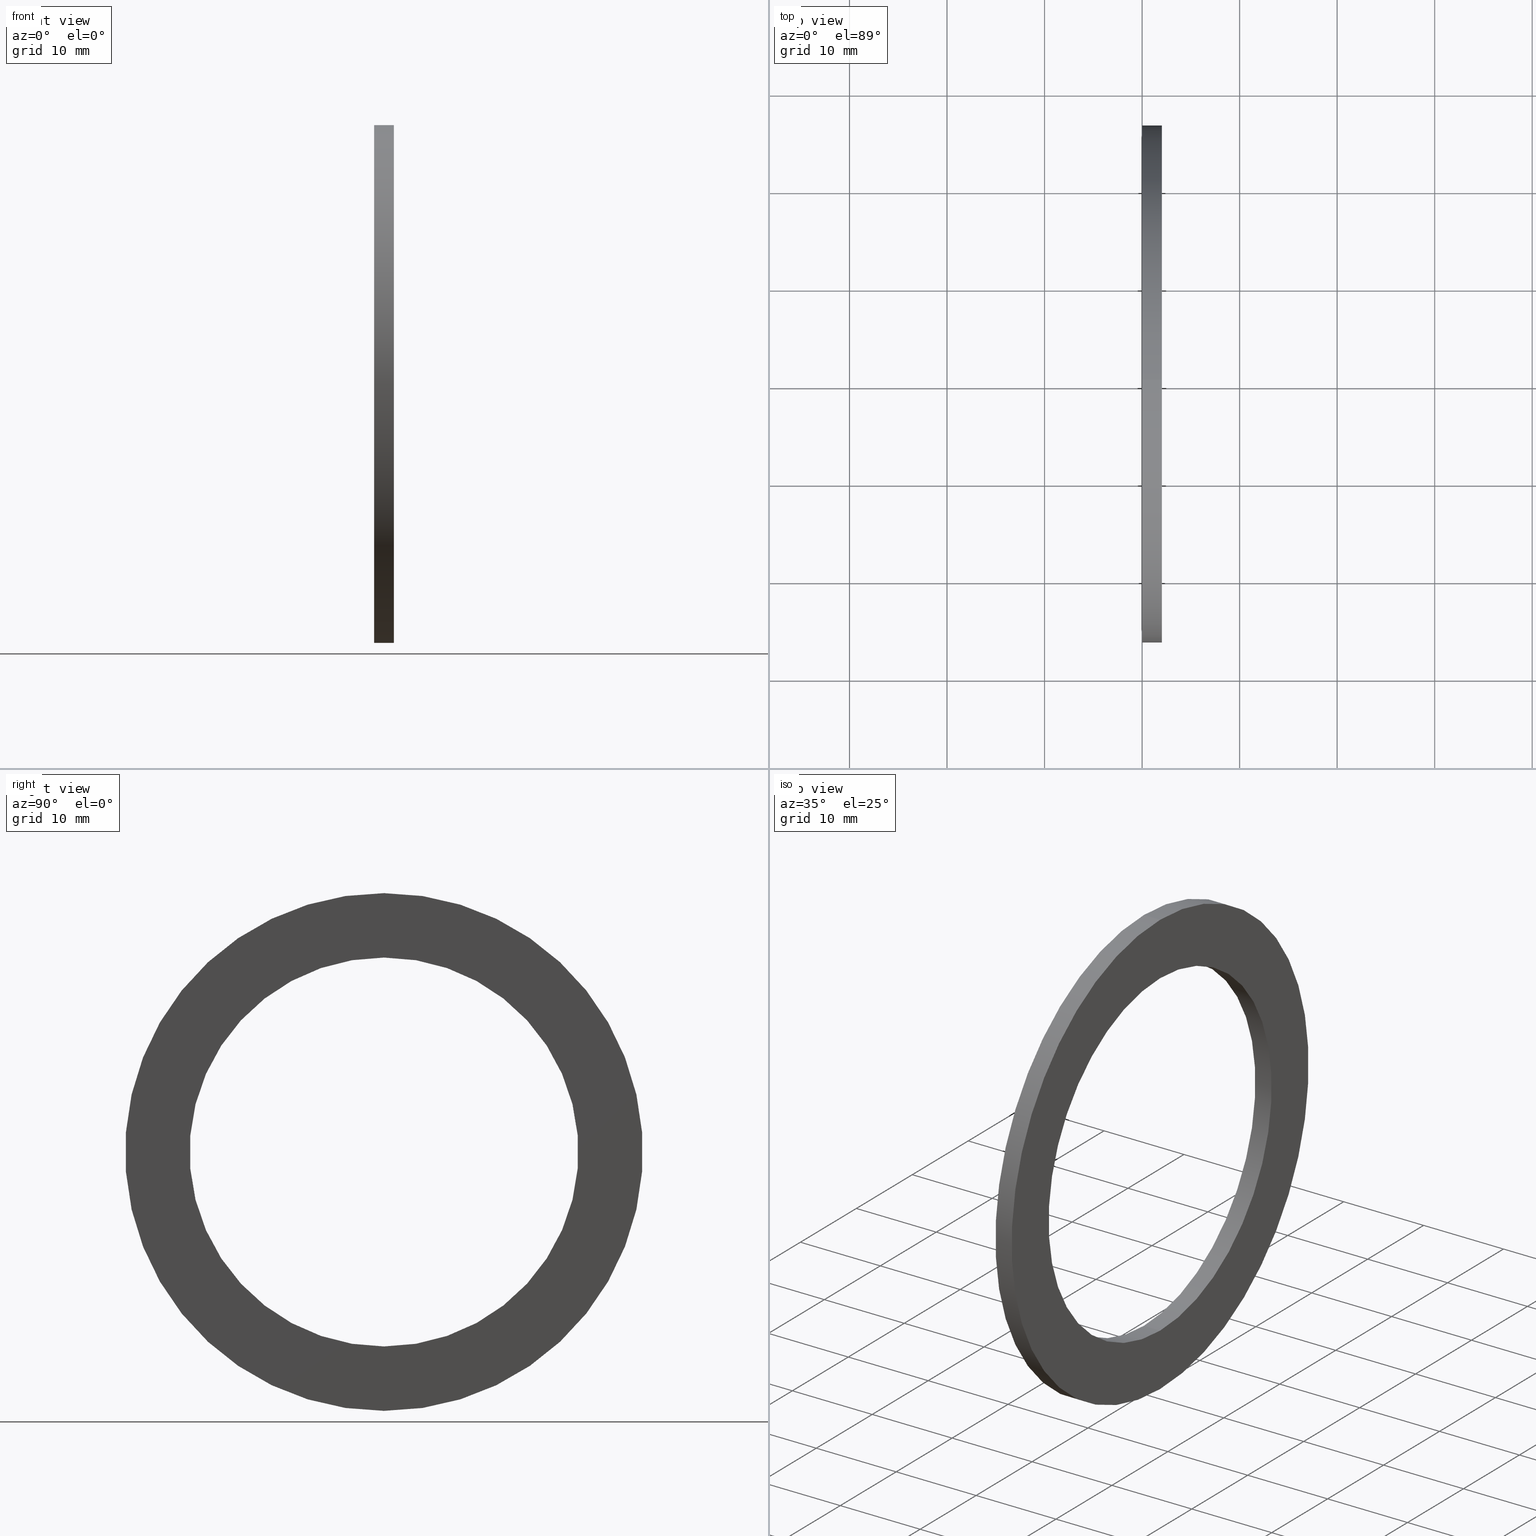
[diagram: canonical four-view strip — front | top / right | iso, engineering-drawing reading convention]
A machine part, canonical four-view strip (front | top / right | iso — engineering-drawing reading convention). The complete STEP part file that produces these views, byte-faithful:
ISO-10303-21;
HEADER;
FILE_DESCRIPTION (( 'STEP AP203' ),
    '1' );
FILE_NAME ('MS-40-NY.STEP',
    '2008-03-29T07:54:28',
    ( '' ),
    ( '' ),
    'SwSTEP 2.0',
    'SolidWorks 2007',
    '' );
FILE_SCHEMA (( 'CONFIG_CONTROL_DESIGN' ));
ENDSEC;

DATA;
#1 = CARTESIAN_POINT ( 'NONE',  ( 0.07999999999999996000, 0.0000000000000000000, 0.0000000000000000000 ) ) ;
#2 = DIRECTION ( 'NONE',  ( -1.000000000000000000, 0.0000000000000000000, 0.0000000000000000000 ) ) ;
#3 = DIRECTION ( 'NONE',  ( 0.0000000000000000000, 0.0000000000000000000, 1.000000000000000000 ) ) ;
#4 = CARTESIAN_POINT ( 'NONE',  ( -1.721125226614714300, 0.0000000000000000000, 0.0000000000000000000 ) ) ;
#5 = DIRECTION ( 'NONE',  ( 0.0000000000000000000, 0.0000000000000000000, -1.000000000000000000 ) ) ;
#6 = DIRECTION ( 'NONE',  ( 1.000000000000000000, 0.0000000000000000000, 0.0000000000000000000 ) ) ;
#7 = CARTESIAN_POINT ( 'NONE',  ( 0.08000000000000002900, -0.7850000000000001400, 0.0000000000000000000 ) ) ;
#8 = AXIS2_PLACEMENT_3D ( 'NONE', #7, #6, #5 ) ;
#9 = FACE_OUTER_BOUND ( 'NONE', #89, .T. ) ;
#10 = PLANE ( 'NONE',  #8 ) ;
#11 = FACE_OUTER_BOUND ( 'NONE', #83, .T. ) ;
#12 = DIRECTION ( 'NONE',  ( 0.0000000000000000000, 0.0000000000000000000, 1.000000000000000000 ) ) ;
#13 = DIRECTION ( 'NONE',  ( -1.000000000000000000, 0.0000000000000000000, 0.0000000000000000000 ) ) ;
#14 = CARTESIAN_POINT ( 'NONE',  ( 0.07999999999999996000, 0.0000000000000000000, 0.0000000000000000000 ) ) ;
#15 = AXIS2_PLACEMENT_3D ( 'NONE', #14, #13, #12 ) ;
#16 = CIRCLE ( 'NONE', #15, 0.7850000000000001400 ) ;
#17 = FACE_BOUND ( 'NONE', #84, .T. ) ;
#18 = CARTESIAN_POINT ( 'NONE',  ( 0.0000000000000000000, 0.0000000000000000000, 1.044999999999999900 ) ) ;
#19 = DIRECTION ( 'NONE',  ( 0.0000000000000000000, 0.0000000000000000000, 1.000000000000000000 ) ) ;
#20 = DIRECTION ( 'NONE',  ( -1.000000000000000000, 0.0000000000000000000, 0.0000000000000000000 ) ) ;
#21 = CARTESIAN_POINT ( 'NONE',  ( 3.490128108393776100E-017, -0.7850000000000001400, 0.0000000000000000000 ) ) ;
#22 = AXIS2_PLACEMENT_3D ( 'NONE', #21, #20, #19 ) ;
#23 = PLANE ( 'NONE',  #22 ) ;
#24 = ADVANCED_FACE ( 'NONE', ( #81 ), #80, .T. ) ;
#25 = EDGE_LOOP ( 'NONE', ( #143, #145, #73, #75 ) ) ;
#26 = EDGE_CURVE ( 'NONE', #119, #149, #41, .T. ) ;
#27 = FACE_BOUND ( 'NONE', #141, .T. ) ;
#28 = FACE_OUTER_BOUND ( 'NONE', #79, .T. ) ;
#29 = DIRECTION ( 'NONE',  ( -1.000000000000000000, 0.0000000000000000000, 0.0000000000000000000 ) ) ;
#30 = VECTOR ( 'NONE', #29, 39.37007874015748100 ) ;
#31 = CARTESIAN_POINT ( 'NONE',  ( -1.721125226614714300, 0.0000000000000000000, 1.044999999999999900 ) ) ;
#32 = DIRECTION ( 'NONE',  ( 0.0000000000000000000, 0.0000000000000000000, 1.000000000000000000 ) ) ;
#33 = DIRECTION ( 'NONE',  ( -1.000000000000000000, 0.0000000000000000000, 0.0000000000000000000 ) ) ;
#34 = CARTESIAN_POINT ( 'NONE',  ( 0.0000000000000000000, 0.0000000000000000000, 0.0000000000000000000 ) ) ;
#35 = AXIS2_PLACEMENT_3D ( 'NONE', #34, #33, #32 ) ;
#36 = CIRCLE ( 'NONE', #35, 1.044999999999999900 ) ;
#37 = LINE ( 'NONE', #31, #30 ) ;
#38 = DIRECTION ( 'NONE',  ( -1.000000000000000000, 0.0000000000000000000, 0.0000000000000000000 ) ) ;
#39 = VECTOR ( 'NONE', #38, 39.37007874015748100 ) ;
#40 = CARTESIAN_POINT ( 'NONE',  ( -1.721125226614714300, 0.0000000000000000000, 0.7850000000000001400 ) ) ;
#41 = LINE ( 'NONE', #40, #39 ) ;
#42 = DIRECTION ( 'NONE',  ( 0.0000000000000000000, 0.0000000000000000000, 1.000000000000000000 ) ) ;
#43 = DIRECTION ( 'NONE',  ( -1.000000000000000000, 0.0000000000000000000, 0.0000000000000000000 ) ) ;
#44 = CARTESIAN_POINT ( 'NONE',  ( -1.721125226614714300, 0.0000000000000000000, 0.0000000000000000000 ) ) ;
#45 = AXIS2_PLACEMENT_3D ( 'NONE', #44, #43, #42 ) ;
#46 = VECTOR ( 'NONE', #72, 39.37007874015748100 ) ;
#47 = CARTESIAN_POINT ( 'NONE',  ( -1.721125226614714300, 9.613477373306724800E-017, -0.7850000000000001400 ) ) ;
#48 = LINE ( 'NONE', #47, #46 ) ;
#49 = CARTESIAN_POINT ( 'NONE',  ( 0.07999999999999996000, 0.0000000000000000000, 0.7850000000000001400 ) ) ;
#50 = DIRECTION ( 'NONE',  ( 0.0000000000000000000, 0.0000000000000000000, 1.000000000000000000 ) ) ;
#51 = DIRECTION ( 'NONE',  ( -1.000000000000000000, 0.0000000000000000000, 0.0000000000000000000 ) ) ;
#52 = CARTESIAN_POINT ( 'NONE',  ( 0.07999999999999996000, 0.0000000000000000000, 0.0000000000000000000 ) ) ;
#53 = AXIS2_PLACEMENT_3D ( 'NONE', #52, #51, #50 ) ;
#54 = CIRCLE ( 'NONE', #53, 0.7850000000000001400 ) ;
#55 = DIRECTION ( 'NONE',  ( 0.0000000000000000000, 0.0000000000000000000, 1.000000000000000000 ) ) ;
#56 = DIRECTION ( 'NONE',  ( -1.000000000000000000, 0.0000000000000000000, 0.0000000000000000000 ) ) ;
#57 = CARTESIAN_POINT ( 'NONE',  ( -1.721125226614714300, 0.0000000000000000000, 0.0000000000000000000 ) ) ;
#58 = CYLINDRICAL_SURFACE ( 'NONE', #60, 0.7850000000000001400 ) ;
#59 = CARTESIAN_POINT ( 'NONE',  ( 0.07999999999999996000, 9.613477373306724800E-017, -0.7850000000000001400 ) ) ;
#60 = AXIS2_PLACEMENT_3D ( 'NONE', #57, #56, #55 ) ;
#61 = DIRECTION ( 'NONE',  ( 0.0000000000000000000, 0.0000000000000000000, 1.000000000000000000 ) ) ;
#62 = DIRECTION ( 'NONE',  ( -1.000000000000000000, 0.0000000000000000000, 0.0000000000000000000 ) ) ;
#63 = AXIS2_PLACEMENT_3D ( 'NONE', #4, #62, #61 ) ;
#64 = CYLINDRICAL_SURFACE ( 'NONE', #63, 0.7850000000000001400 ) ;
#65 = FACE_OUTER_BOUND ( 'NONE', #115, .T. ) ;
#66 = DIRECTION ( 'NONE',  ( 0.0000000000000000000, 0.0000000000000000000, 1.000000000000000000 ) ) ;
#67 = DIRECTION ( 'NONE',  ( -1.000000000000000000, 0.0000000000000000000, 0.0000000000000000000 ) ) ;
#68 = CARTESIAN_POINT ( 'NONE',  ( 0.0000000000000000000, 0.0000000000000000000, 0.0000000000000000000 ) ) ;
#69 = AXIS2_PLACEMENT_3D ( 'NONE', #68, #67, #66 ) ;
#70 = CIRCLE ( 'NONE', #69, 0.7850000000000001400 ) ;
#71 = CARTESIAN_POINT ( 'NONE',  ( 0.0000000000000000000, 9.613477373306724800E-017, -0.7850000000000001400 ) ) ;
#72 = DIRECTION ( 'NONE',  ( -1.000000000000000000, 0.0000000000000000000, 0.0000000000000000000 ) ) ;
#73 = ORIENTED_EDGE ( 'NONE', *, *, #74, .F. ) ;
#74 = EDGE_CURVE ( 'NONE', #78, #144, #36, .T. ) ;
#75 = ORIENTED_EDGE ( 'NONE', *, *, #76, .F. ) ;
#76 = EDGE_CURVE ( 'NONE', #147, #78, #37, .T. ) ;
#77 = ADVANCED_FACE ( 'NONE', ( #28, #27 ), #23, .T. ) ;
#78 = VERTEX_POINT ( 'NONE', #18 ) ;
#79 = EDGE_LOOP ( 'NONE', ( #136, #140 ) ) ;
#80 = CYLINDRICAL_SURFACE ( 'NONE', #45, 1.044999999999999900 ) ;
#81 = FACE_OUTER_BOUND ( 'NONE', #25, .T. ) ;
#82 = EDGE_CURVE ( 'NONE', #119, #117, #16, .T. ) ;
#83 = EDGE_LOOP ( 'NONE', ( #91, #88 ) ) ;
#84 = EDGE_LOOP ( 'NONE', ( #112, #90 ) ) ;
#85 = ORIENTED_EDGE ( 'NONE', *, *, #82, .F. ) ;
#86 = ORIENTED_EDGE ( 'NONE', *, *, #26, .T. ) ;
#87 = ORIENTED_EDGE ( 'NONE', *, *, #138, .T. ) ;
#88 = ORIENTED_EDGE ( 'NONE', *, *, #155, .F. ) ;
#89 = EDGE_LOOP ( 'NONE', ( #110, #85, #86, #87 ) ) ;
#90 = ORIENTED_EDGE ( 'NONE', *, *, #118, .T. ) ;
#91 = ORIENTED_EDGE ( 'NONE', *, *, #142, .F. ) ;
#92 = CARTESIAN_POINT ( 'NONE',  ( 0.0000000000000000000, 1.279755905108984100E-016, -1.044999999999999900 ) ) ;
#93 = DIRECTION ( 'NONE',  ( 0.0000000000000000000, 0.0000000000000000000, 1.000000000000000000 ) ) ;
#94 = DIRECTION ( 'NONE',  ( -1.000000000000000000, 0.0000000000000000000, 0.0000000000000000000 ) ) ;
#95 = CARTESIAN_POINT ( 'NONE',  ( 0.07999999999999996000, 0.0000000000000000000, 0.0000000000000000000 ) ) ;
#96 = AXIS2_PLACEMENT_3D ( 'NONE', #95, #94, #93 ) ;
#97 = CIRCLE ( 'NONE', #96, 1.044999999999999900 ) ;
#98 = DIRECTION ( 'NONE',  ( 0.0000000000000000000, 0.0000000000000000000, 1.000000000000000000 ) ) ;
#99 = DIRECTION ( 'NONE',  ( -1.000000000000000000, 0.0000000000000000000, 0.0000000000000000000 ) ) ;
#100 = CARTESIAN_POINT ( 'NONE',  ( 0.0000000000000000000, 0.0000000000000000000, 0.0000000000000000000 ) ) ;
#101 = AXIS2_PLACEMENT_3D ( 'NONE', #100, #99, #98 ) ;
#102 = CIRCLE ( 'NONE', #101, 1.044999999999999900 ) ;
#103 = DIRECTION ( 'NONE',  ( 0.0000000000000000000, 0.0000000000000000000, 1.000000000000000000 ) ) ;
#104 = DIRECTION ( 'NONE',  ( -1.000000000000000000, 0.0000000000000000000, 0.0000000000000000000 ) ) ;
#105 = CARTESIAN_POINT ( 'NONE',  ( 0.0000000000000000000, 0.0000000000000000000, 0.0000000000000000000 ) ) ;
#106 = AXIS2_PLACEMENT_3D ( 'NONE', #105, #104, #103 ) ;
#107 = CIRCLE ( 'NONE', #106, 0.7850000000000001400 ) ;
#108 = ADVANCED_FACE ( 'NONE', ( #17, #11 ), #10, .T. ) ;
#109 = ADVANCED_FACE ( 'NONE', ( #9 ), #64, .F. ) ;
#110 = ORIENTED_EDGE ( 'NONE', *, *, #121, .F. ) ;
#111 = CLOSED_SHELL ( 'NONE', ( #114, #24, #77, #156, #108, #109 ) ) ;
#112 = ORIENTED_EDGE ( 'NONE', *, *, #82, .T. ) ;
#113 = MANIFOLD_SOLID_BREP ( 'NONE', #111 ) ;
#114 = ADVANCED_FACE ( 'NONE', ( #65 ), #58, .F. ) ;
#115 = EDGE_LOOP ( 'NONE', ( #116, #120, #123, #150 ) ) ;
#116 = ORIENTED_EDGE ( 'NONE', *, *, #118, .F. ) ;
#117 = VERTEX_POINT ( 'NONE', #59 ) ;
#118 = EDGE_CURVE ( 'NONE', #117, #119, #54, .T. ) ;
#119 = VERTEX_POINT ( 'NONE', #49 ) ;
#120 = ORIENTED_EDGE ( 'NONE', *, *, #121, .T. ) ;
#121 = EDGE_CURVE ( 'NONE', #117, #122, #48, .T. ) ;
#122 = VERTEX_POINT ( 'NONE', #71 ) ;
#123 = ORIENTED_EDGE ( 'NONE', *, *, #124, .T. ) ;
#124 = EDGE_CURVE ( 'NONE', #122, #149, #70, .T. ) ;
#125 = AXIS2_PLACEMENT_3D ( 'NONE', #1, #2, #3 ) ;
#126 = CIRCLE ( 'NONE', #125, 1.044999999999999900 ) ;
#127 = CARTESIAN_POINT ( 'NONE',  ( 0.0000000000000000000, 0.0000000000000000000, 0.7850000000000001400 ) ) ;
#128 = CARTESIAN_POINT ( 'NONE',  ( 0.07999999999999996000, 1.279755905108984100E-016, -1.044999999999999900 ) ) ;
#129 = CARTESIAN_POINT ( 'NONE',  ( 0.07999999999999996000, 0.0000000000000000000, 1.044999999999999900 ) ) ;
#130 = DIRECTION ( 'NONE',  ( -1.000000000000000000, 0.0000000000000000000, 0.0000000000000000000 ) ) ;
#131 = VECTOR ( 'NONE', #130, 39.37007874015748100 ) ;
#132 = CARTESIAN_POINT ( 'NONE',  ( -1.721125226614714300, 1.279755905108984100E-016, -1.044999999999999900 ) ) ;
#133 = LINE ( 'NONE', #132, #131 ) ;
#134 = ORIENTED_EDGE ( 'NONE', *, *, #124, .F. ) ;
#135 = ORIENTED_EDGE ( 'NONE', *, *, #146, .F. ) ;
#136 = ORIENTED_EDGE ( 'NONE', *, *, #74, .T. ) ;
#137 = ORIENTED_EDGE ( 'NONE', *, *, #138, .F. ) ;
#138 = EDGE_CURVE ( 'NONE', #149, #122, #107, .T. ) ;
#139 = EDGE_CURVE ( 'NONE', #144, #78, #102, .T. ) ;
#140 = ORIENTED_EDGE ( 'NONE', *, *, #139, .T. ) ;
#141 = EDGE_LOOP ( 'NONE', ( #137, #134 ) ) ;
#142 = EDGE_CURVE ( 'NONE', #147, #148, #97, .T. ) ;
#143 = ORIENTED_EDGE ( 'NONE', *, *, #142, .T. ) ;
#144 = VERTEX_POINT ( 'NONE', #92 ) ;
#145 = ORIENTED_EDGE ( 'NONE', *, *, #146, .T. ) ;
#146 = EDGE_CURVE ( 'NONE', #148, #144, #133, .T. ) ;
#147 = VERTEX_POINT ( 'NONE', #129 ) ;
#148 = VERTEX_POINT ( 'NONE', #128 ) ;
#149 = VERTEX_POINT ( 'NONE', #127 ) ;
#150 = ORIENTED_EDGE ( 'NONE', *, *, #26, .F. ) ;
#151 = ORIENTED_EDGE ( 'NONE', *, *, #139, .F. ) ;
#152 = ORIENTED_EDGE ( 'NONE', *, *, #76, .T. ) ;
#153 = EDGE_LOOP ( 'NONE', ( #135, #154, #152, #151 ) ) ;
#154 = ORIENTED_EDGE ( 'NONE', *, *, #155, .T. ) ;
#155 = EDGE_CURVE ( 'NONE', #148, #147, #126, .T. ) ;
#156 = ADVANCED_FACE ( 'NONE', ( #171 ), #163, .T. ) ;
#157 = AXIS2_PLACEMENT_3D ( 'NONE', #158, #170, #175 ) ;
#158 = CARTESIAN_POINT ( 'NONE',  ( -1.721125226614714300, 0.0000000000000000000, 0.0000000000000000000 ) ) ;
#159 = DIRECTION ( 'NONE',  ( 1.000000000000000000, 0.0000000000000000000, 0.0000000000000000000 ) ) ;
#160 = DIRECTION ( 'NONE',  ( 0.0000000000000000000, 0.0000000000000000000, 1.000000000000000000 ) ) ;
#161 =( NAMED_UNIT ( * ) PLANE_ANGLE_UNIT ( ) SI_UNIT ( $, .RADIAN. ) );
#162 = UNCERTAINTY_MEASURE_WITH_UNIT (LENGTH_MEASURE( 1.000000000000000100E-005 ), #164, 'distance_accuracy_value', 'NONE');
#163 = CYLINDRICAL_SURFACE ( 'NONE', #157, 1.044999999999999900 ) ;
#164 =( CONVERSION_BASED_UNIT ( 'INCH', #168 ) LENGTH_UNIT ( ) NAMED_UNIT ( #174 ) );
#165 =( GEOMETRIC_REPRESENTATION_CONTEXT ( 3 ) GLOBAL_UNCERTAINTY_ASSIGNED_CONTEXT ( ( #162 ) ) GLOBAL_UNIT_ASSIGNED_CONTEXT ( ( #164, #161, #166 ) ) REPRESENTATION_CONTEXT ( 'NONE', 'WORKASPACE' ) );
#166 =( NAMED_UNIT ( * ) SI_UNIT ( $, .STERADIAN. ) SOLID_ANGLE_UNIT ( ) );
#167 = ADVANCED_BREP_SHAPE_REPRESENTATION ( 'MS-40-NY', ( #113, #172 ), #165 ) ;
#168 = LENGTH_MEASURE_WITH_UNIT ( LENGTH_MEASURE( 0.02539999999999999900 ), #169 );
#169 =( LENGTH_UNIT ( ) NAMED_UNIT ( * ) SI_UNIT ( $, .METRE. ) );
#170 = DIRECTION ( 'NONE',  ( -1.000000000000000000, 0.0000000000000000000, 0.0000000000000000000 ) ) ;
#171 = FACE_OUTER_BOUND ( 'NONE', #153, .T. ) ;
#172 = AXIS2_PLACEMENT_3D ( 'NONE', #173, #160, #159 ) ;
#173 = CARTESIAN_POINT ( 'NONE',  ( 0.0000000000000000000, 0.0000000000000000000, 0.0000000000000000000 ) ) ;
#174 = DIMENSIONAL_EXPONENTS ( 1.000000000000000000, 0.0000000000000000000, 0.0000000000000000000, 0.0000000000000000000, 0.0000000000000000000, 0.0000000000000000000, 0.0000000000000000000 ) ;
#175 = DIRECTION ( 'NONE',  ( 0.0000000000000000000, 0.0000000000000000000, 1.000000000000000000 ) ) ;
#176 = PERSON_AND_ORGANIZATION ( #181, #177 ) ;
#177 = ORGANIZATION ( 'UNSPECIFIED', 'UNSPECIFIED', '' ) ;
#178 = MECHANICAL_CONTEXT ( 'NONE', #180, 'mechanical' ) ;
#179 = APPLICATION_PROTOCOL_DEFINITION ( 'international standard', 'config_control_design', 1994, #180 ) ;
#180 = APPLICATION_CONTEXT ( 'configuration controlled 3d designs of mechanical parts and assemblies' ) ;
#181 = PERSON ( 'UNSPECIFIED', 'UNSPECIFIED', 'UNSPECIFIED', ('UNSPECIFIED'), ('UNSPECIFIED'), ('UNSPECIFIED') ) ;
#182 = PRODUCT ( 'MS-40-NY', 'MS-40-NY', '', ( #178 ) ) ;
#183 = PRODUCT_DEFINITION_SHAPE ( 'NONE', 'NONE',  #214 ) ;
#184 = PRODUCT_RELATED_PRODUCT_CATEGORY ( 'detail', '', ( #182 ) ) ;
#185 = CC_DESIGN_SECURITY_CLASSIFICATION ( #247, ( #233 ) ) ;
#186 = CC_DESIGN_APPROVAL ( #194, ( #247 ) ) ;
#187 = APPROVAL_DATE_TIME ( #188, #194 ) ;
#188 = DATE_AND_TIME ( #189, #190 ) ;
#189 = CALENDAR_DATE ( 2008, 29, 3 ) ;
#190 = LOCAL_TIME ( 13, 24, 28.00000000000000000, #191 ) ;
#191 = COORDINATED_UNIVERSAL_TIME_OFFSET ( 5, 30, .AHEAD. ) ;
#192 = APPROVAL_PERSON_ORGANIZATION ( #196, #194, #193 ) ;
#193 = APPROVAL_ROLE ( '' ) ;
#194 = APPROVAL ( #195, 'UNSPECIFIED' ) ;
#195 = APPROVAL_STATUS ( 'not_yet_approved' ) ;
#196 = PERSON_AND_ORGANIZATION ( #181, #177 ) ;
#197 = CC_DESIGN_DATE_AND_TIME_ASSIGNMENT ( #242, #198, ( #247 ) ) ;
#198 = DATE_TIME_ROLE ( 'classification_date' ) ;
#199 = CALENDAR_DATE ( 2008, 29, 3 ) ;
#200 = LOCAL_TIME ( 13, 24, 28.00000000000000000, #243 ) ;
#201 = SHAPE_DEFINITION_REPRESENTATION ( #183, #167 ) ;
#202 = PERSON_AND_ORGANIZATION ( #181, #177 ) ;
#203 = CC_DESIGN_APPROVAL ( #211, ( #214 ) ) ;
#204 = APPROVAL_DATE_TIME ( #205, #211 ) ;
#205 = DATE_AND_TIME ( #206, #207 ) ;
#206 = CALENDAR_DATE ( 2008, 29, 3 ) ;
#207 = LOCAL_TIME ( 13, 24, 28.00000000000000000, #208 ) ;
#208 = COORDINATED_UNIVERSAL_TIME_OFFSET ( 5, 30, .AHEAD. ) ;
#209 = APPROVAL_PERSON_ORGANIZATION ( #213, #211, #210 ) ;
#210 = APPROVAL_ROLE ( '' ) ;
#211 = APPROVAL ( #212, 'UNSPECIFIED' ) ;
#212 = APPROVAL_STATUS ( 'not_yet_approved' ) ;
#213 = PERSON_AND_ORGANIZATION ( #181, #177 ) ;
#214 = PRODUCT_DEFINITION ( 'UNKNOWN', '', #233, #215 ) ;
#215 = DESIGN_CONTEXT ( 'detailed design', #217, 'design' ) ;
#216 = APPLICATION_PROTOCOL_DEFINITION ( 'international standard', 'config_control_design', 1994, #217 ) ;
#217 = APPLICATION_CONTEXT ( 'configuration controlled 3d designs of mechanical parts and assemblies' ) ;
#218 = CC_DESIGN_PERSON_AND_ORGANIZATION_ASSIGNMENT ( #176, #219, ( #182 ) ) ;
#219 = PERSON_AND_ORGANIZATION_ROLE ( 'design_owner' ) ;
#220 = PERSON_AND_ORGANIZATION_ROLE ( 'creator' ) ;
#221 = PERSON_AND_ORGANIZATION ( #181, #177 ) ;
#222 = CC_DESIGN_APPROVAL ( #230, ( #233 ) ) ;
#223 = APPROVAL_DATE_TIME ( #224, #230 ) ;
#224 = DATE_AND_TIME ( #225, #226 ) ;
#225 = CALENDAR_DATE ( 2008, 29, 3 ) ;
#226 = LOCAL_TIME ( 13, 24, 28.00000000000000000, #227 ) ;
#227 = COORDINATED_UNIVERSAL_TIME_OFFSET ( 5, 30, .AHEAD. ) ;
#228 = APPROVAL_PERSON_ORGANIZATION ( #232, #230, #229 ) ;
#229 = APPROVAL_ROLE ( '' ) ;
#230 = APPROVAL ( #231, 'UNSPECIFIED' ) ;
#231 = APPROVAL_STATUS ( 'not_yet_approved' ) ;
#232 = PERSON_AND_ORGANIZATION ( #181, #177 ) ;
#233 = PRODUCT_DEFINITION_FORMATION_WITH_SPECIFIED_SOURCE ( 'ANY', '', #182, .NOT_KNOWN. ) ;
#234 = CC_DESIGN_DATE_AND_TIME_ASSIGNMENT ( #236, #235, ( #214 ) ) ;
#235 = DATE_TIME_ROLE ( 'creation_date' ) ;
#236 = DATE_AND_TIME ( #237, #238 ) ;
#237 = CALENDAR_DATE ( 2008, 29, 3 ) ;
#238 = LOCAL_TIME ( 13, 24, 28.00000000000000000, #239 ) ;
#239 = COORDINATED_UNIVERSAL_TIME_OFFSET ( 5, 30, .AHEAD. ) ;
#240 = CC_DESIGN_PERSON_AND_ORGANIZATION_ASSIGNMENT ( #202, #241, ( #214 ) ) ;
#241 = PERSON_AND_ORGANIZATION_ROLE ( 'creator' ) ;
#242 = DATE_AND_TIME ( #199, #200 ) ;
#243 = COORDINATED_UNIVERSAL_TIME_OFFSET ( 5, 30, .AHEAD. ) ;
#244 = CC_DESIGN_PERSON_AND_ORGANIZATION_ASSIGNMENT ( #246, #245, ( #247 ) ) ;
#245 = PERSON_AND_ORGANIZATION_ROLE ( 'classification_officer' ) ;
#246 = PERSON_AND_ORGANIZATION ( #181, #177 ) ;
#247 = SECURITY_CLASSIFICATION ( '', '', #248 ) ;
#248 = SECURITY_CLASSIFICATION_LEVEL ( 'unclassified' ) ;
#249 = CC_DESIGN_PERSON_AND_ORGANIZATION_ASSIGNMENT ( #251, #250, ( #233 ) ) ;
#250 = PERSON_AND_ORGANIZATION_ROLE ( 'design_supplier' ) ;
#251 = PERSON_AND_ORGANIZATION ( #181, #177 ) ;
#252 = CC_DESIGN_PERSON_AND_ORGANIZATION_ASSIGNMENT ( #221, #220, ( #233 ) ) ;
ENDSEC;
END-ISO-10303-21;
